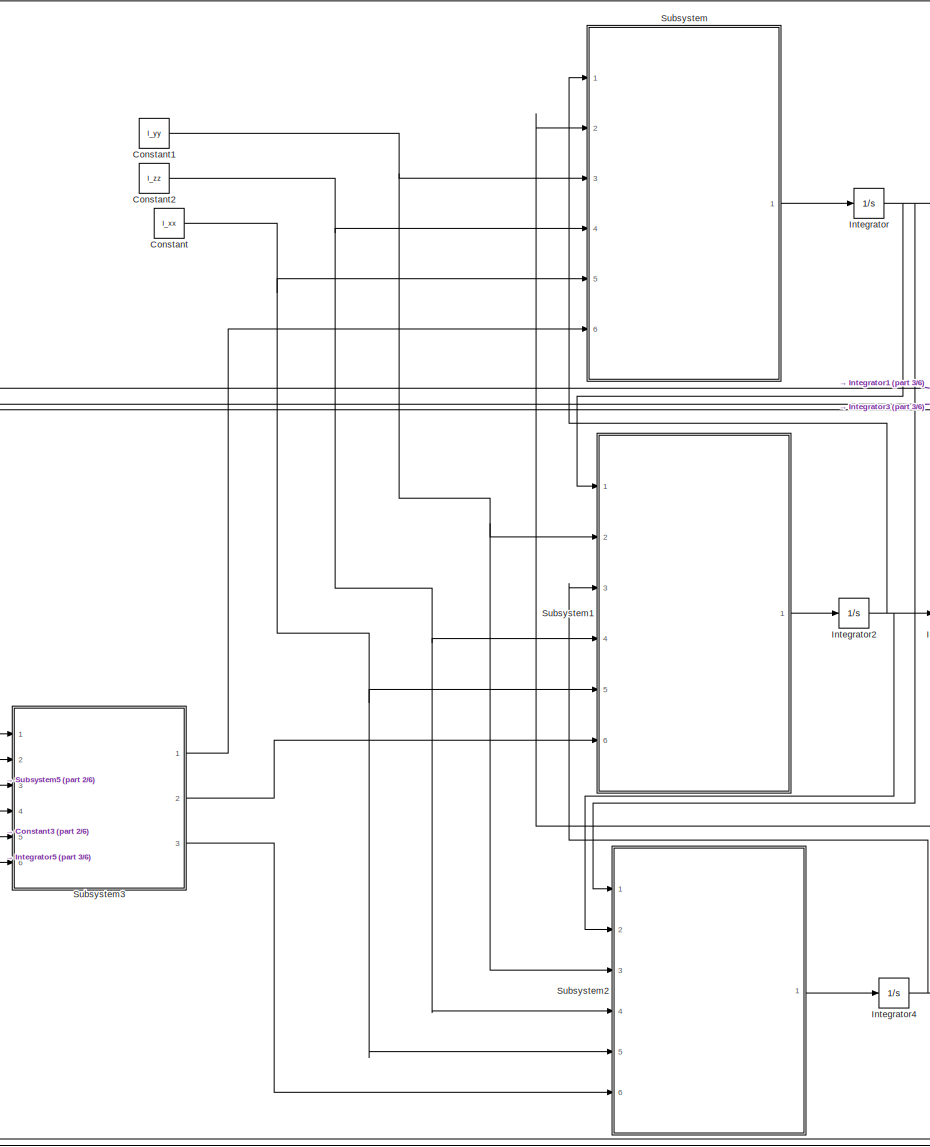
[diagram: root canvas - part 1/6, top center region]
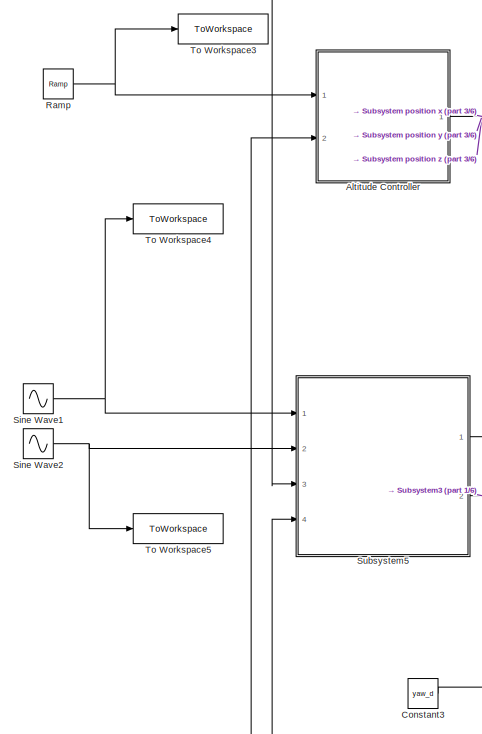
[diagram: root canvas - part 2/6, top left region]
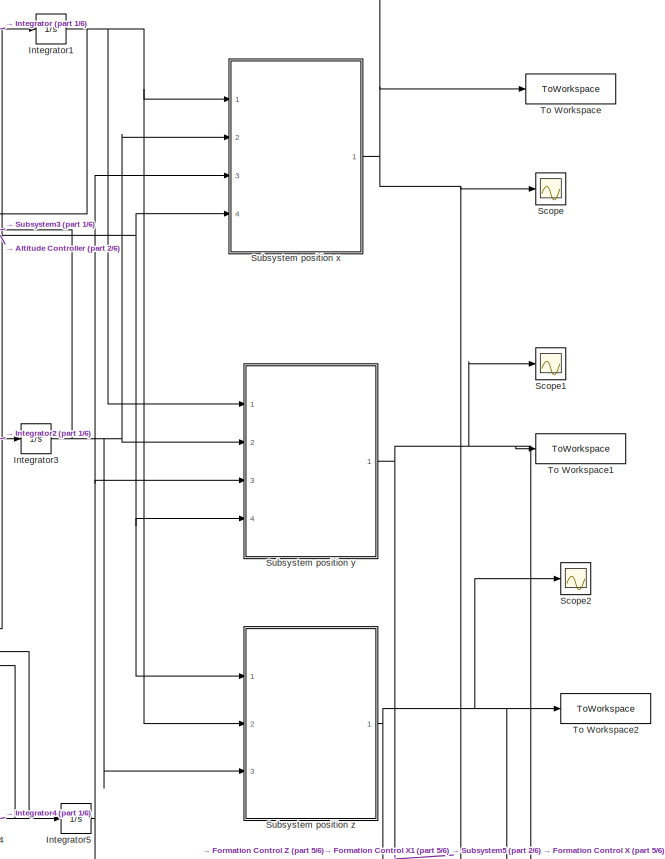
[diagram: root canvas - part 3/6, top right region]
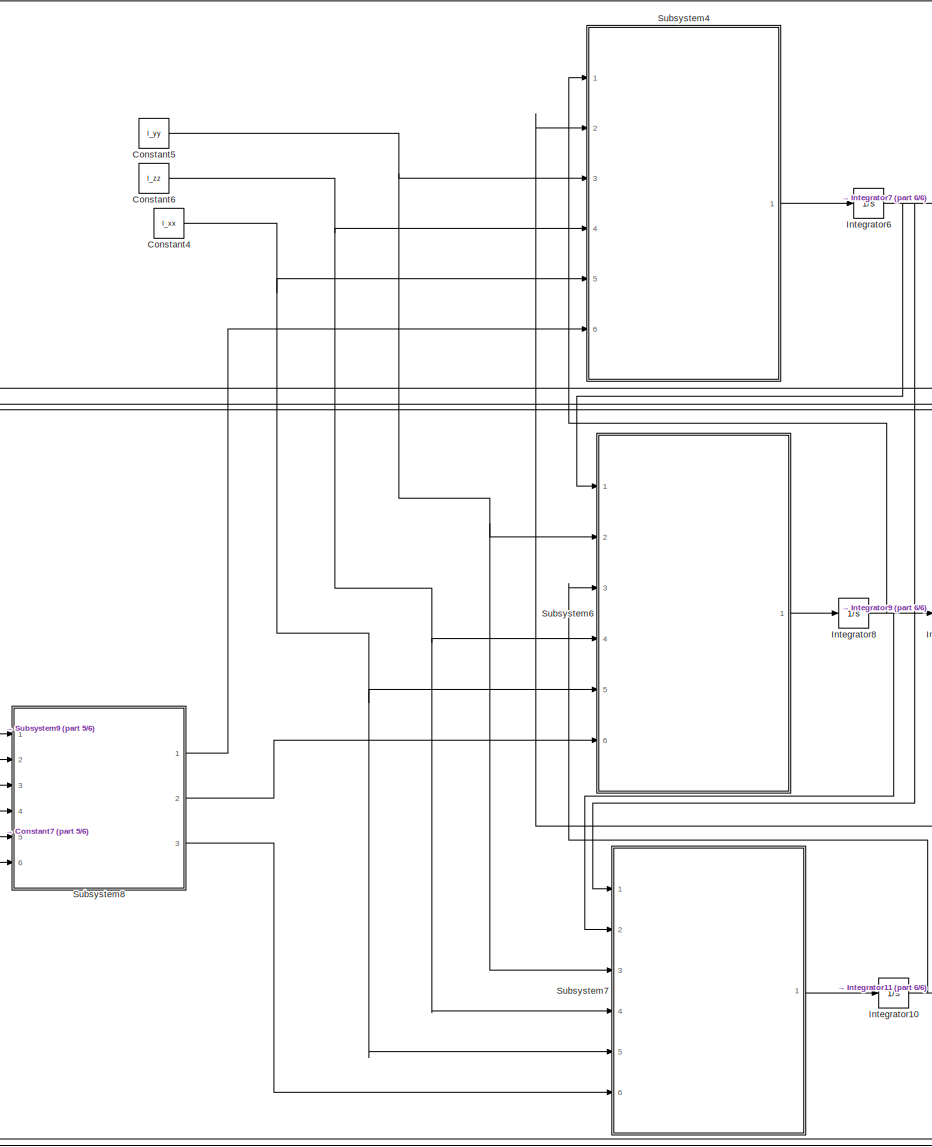
[diagram: root canvas - part 4/6, bottom center region]
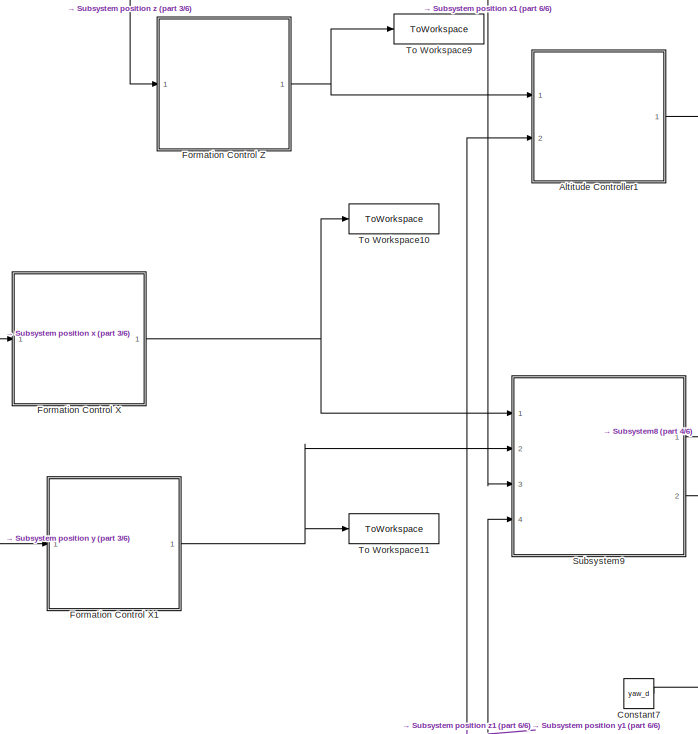
[diagram: root canvas - part 5/6, bottom left region]
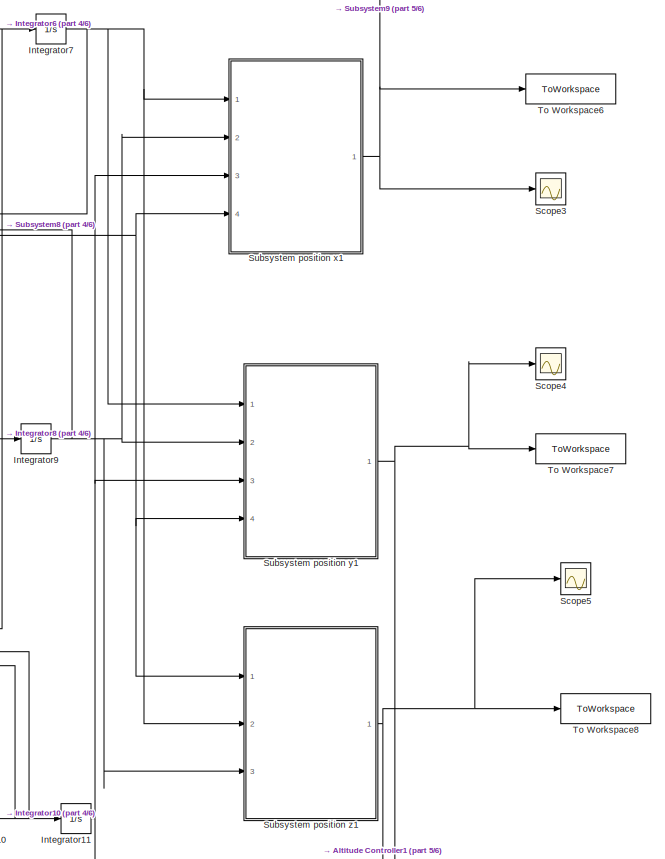
[diagram: root canvas - part 6/6, bottom right region]
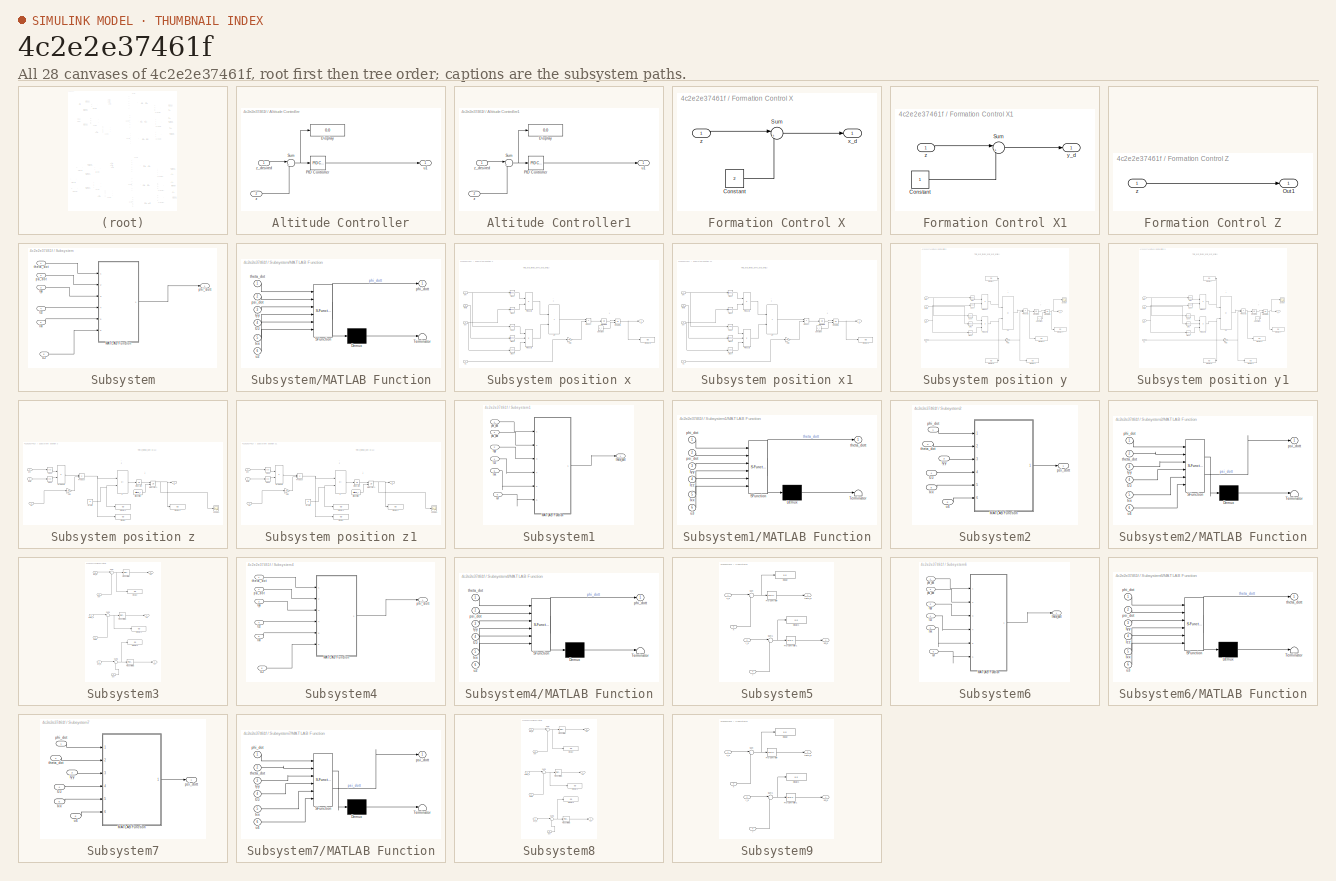
[diagram: thumbnail index - all 28 canvases of the model, root first then tree order]
MODEL slx_4c2e2e37461f
KIND model
CONFIG AbsTol = auto
CONFIG EnableMultiTasking = off
CONFIG FixedStep = 0.01
CONFIG MaxStep = auto
CONFIG MinStep = auto
CONFIG RelTol = 1e-3
CONFIG SampleTimeConstraint = Unconstrained
CONFIG SolverName = FixedStepAuto
CONFIG StartTime = 0.0
CONFIG StopTime = 300
BLOCK [SubSystem] Altitude Controller
  Ports = [2, 1]
  RequestExecContextInheritance = off
BLOCK [Display] Altitude Controller/Display
  Decimation = 1
  Ports = [1]
BLOCK [Reference] Altitude Controller/PID Controller  REF=slpidlib/PID Controller
  Ports = [1, 1]
  SourceBlock = slpidlib/PID Controller
  SourceProductBaseCode = SL
  SourceType = PID 1dof
BLOCK [Sum] Altitude Controller/Sum
  Inputs = |+-
  Ports = [2, 1]
BLOCK [Outport] Altitude Controller/u1
BLOCK [Inport] Altitude Controller/z
  Port = 2
BLOCK [Inport] Altitude Controller/z_desired
BLOCK [SubSystem] Altitude Controller1
  Ports = [2, 1]
  RequestExecContextInheritance = off
BLOCK [Display] Altitude Controller1/Display
  Decimation = 1
  Ports = [1]
BLOCK [Reference] Altitude Controller1/PID Controller  REF=slpidlib/PID Controller
  Ports = [1, 1]
  SourceBlock = slpidlib/PID Controller
  SourceProductBaseCode = SL
  SourceType = PID 1dof
BLOCK [Sum] Altitude Controller1/Sum
  Inputs = |+-
  Ports = [2, 1]
BLOCK [Outport] Altitude Controller1/u1
BLOCK [Inport] Altitude Controller1/z
  Port = 2
BLOCK [Inport] Altitude Controller1/z_desired
BLOCK [Constant] Constant
  Value = I_xx
BLOCK [Constant] Constant1
  Value = I_yy
BLOCK [Constant] Constant2
  Value = I_zz
BLOCK [Constant] Constant3
  Value = yaw_d
BLOCK [Constant] Constant4
  Value = I_xx
BLOCK [Constant] Constant5
  Value = I_yy
BLOCK [Constant] Constant6
  Value = I_zz
BLOCK [Constant] Constant7
  Value = yaw_d
BLOCK [SubSystem] Formation Control X
  Ports = [1, 1]
  RequestExecContextInheritance = off
BLOCK [Constant] Formation Control X/Constant
  Value = 2
BLOCK [Sum] Formation Control X/Sum
  Inputs = |+-
  Ports = [2, 1]
BLOCK [Outport] Formation Control X/x_d
BLOCK [Inport] Formation Control X/z
BLOCK [SubSystem] Formation Control X1
  Ports = [1, 1]
  RequestExecContextInheritance = off
BLOCK [Constant] Formation Control X1/Constant
BLOCK [Sum] Formation Control X1/Sum
  Inputs = |++
  Ports = [2, 1]
BLOCK [Outport] Formation Control X1/y_d
BLOCK [Inport] Formation Control X1/z
BLOCK [SubSystem] Formation Control Z
  Ports = [1, 1]
  RequestExecContextInheritance = off
BLOCK [Outport] Formation Control Z/Out1
BLOCK [Inport] Formation Control Z/z
BLOCK [Integrator] Integrator
  Ports = [1, 1]
BLOCK [Integrator] Integrator1
  Ports = [1, 1]
BLOCK [Integrator] Integrator10
  Ports = [1, 1]
BLOCK [Integrator] Integrator11
  Ports = [1, 1]
BLOCK [Integrator] Integrator2
  Ports = [1, 1]
BLOCK [Integrator] Integrator3
  Ports = [1, 1]
BLOCK [Integrator] Integrator4
  Ports = [1, 1]
BLOCK [Integrator] Integrator5
  Ports = [1, 1]
BLOCK [Integrator] Integrator6
  Ports = [1, 1]
BLOCK [Integrator] Integrator7
  Ports = [1, 1]
BLOCK [Integrator] Integrator8
  Ports = [1, 1]
BLOCK [Integrator] Integrator9
  Ports = [1, 1]
BLOCK [Reference] Ramp  REF=simulink/Sources/Ramp
  Ports = [0, 1]
  SourceBlock = simulink/Sources/Ramp
  SourceProductBaseCode = SL
  SourceType = Ramp
BLOCK [Scope] Scope
  Floating = off
  NumInputPorts = 1
  Ports = [1]
  ScopeSpecificationString = Simulink.scopes.TimeScopeBlockCfg('CurrentConfiguration', extmgr.ConfigurationSet(extmgr.Configuration('Core','General UI',true),extmgr.Configuration('Core','Source UI',true),extmgr.Configuration('Sources','WiredSimulink',true,'DataLoggingVariableName','ScopeData1'),extmgr.Configuration('Visuals','Time Domain',true),extmgr.Configuration('Tools','Plot Navigation',true),extmgr.Configuration('Tools',...<+40ch>
BLOCK [Scope] Scope1
  Floating = off
  NumInputPorts = 1
  Ports = [1]
  ScopeSpecificationString = Simulink.scopes.TimeScopeBlockCfg('CurrentConfiguration', extmgr.ConfigurationSet(extmgr.Configuration('Core','General UI',true),extmgr.Configuration('Core','Source UI',true),extmgr.Configuration('Sources','WiredSimulink',true,'DataLoggingVariableName','ScopeData2'),extmgr.Configuration('Visuals','Time Domain',true),extmgr.Configuration('Tools','Plot Navigation',true),extmgr.Configuration('Tools',...<+40ch>
BLOCK [Scope] Scope2
  Floating = off
  NumInputPorts = 1
  Ports = [1]
  ScopeSpecificationString = Simulink.scopes.TimeScopeBlockCfg('CurrentConfiguration', extmgr.ConfigurationSet(extmgr.Configuration('Core','General UI',true),extmgr.Configuration('Core','Source UI',true),extmgr.Configuration('Sources','WiredSimulink',true,'DataLoggingVariableName','ScopeData3'),extmgr.Configuration('Visuals','Time Domain',true),extmgr.Configuration('Tools','Plot Navigation',true),extmgr.Configuration('Tools',...<+40ch>
BLOCK [Scope] Scope3
  Floating = off
  NumInputPorts = 1
  Ports = [1]
  ScopeSpecificationString = Simulink.scopes.TimeScopeBlockCfg('CurrentConfiguration', extmgr.ConfigurationSet(extmgr.Configuration('Core','General UI',true),extmgr.Configuration('Core','Source UI',true),extmgr.Configuration('Sources','WiredSimulink',true,'DataLoggingVariableName','ScopeData1'),extmgr.Configuration('Visuals','Time Domain',true),extmgr.Configuration('Tools','Plot Navigation',true),extmgr.Configuration('Tools',...<+40ch>
BLOCK [Scope] Scope4
  Floating = off
  NumInputPorts = 1
  Ports = [1]
  ScopeSpecificationString = Simulink.scopes.TimeScopeBlockCfg('CurrentConfiguration', extmgr.ConfigurationSet(extmgr.Configuration('Core','General UI',true),extmgr.Configuration('Core','Source UI',true),extmgr.Configuration('Sources','WiredSimulink',true,'DataLoggingVariableName','ScopeData2'),extmgr.Configuration('Visuals','Time Domain',true),extmgr.Configuration('Tools','Plot Navigation',true),extmgr.Configuration('Tools',...<+40ch>
BLOCK [Scope] Scope5
  Floating = off
  NumInputPorts = 1
  Ports = [1]
  ScopeSpecificationString = Simulink.scopes.TimeScopeBlockCfg('CurrentConfiguration', extmgr.ConfigurationSet(extmgr.Configuration('Core','General UI',true),extmgr.Configuration('Core','Source UI',true),extmgr.Configuration('Sources','WiredSimulink',true,'DataLoggingVariableName','ScopeData3'),extmgr.Configuration('Visuals','Time Domain',true),extmgr.Configuration('Tools','Plot Navigation',true),extmgr.Configuration('Tools',...<+40ch>
BLOCK [Sin] Sine Wave1
  Frequency = 0.5
  Ports = [0, 1]
  SampleTime = 0
BLOCK [Sin] Sine Wave2
  Frequency = 0.5
  Ports = [0, 1]
  SampleTime = 0
BLOCK [SubSystem] Subsystem
  Ports = [6, 1]
  RequestExecContextInheritance = off
BLOCK [SubSystem] Subsystem position x
  Ports = [4, 1]
  RequestExecContextInheritance = off
BLOCK [Constant] Subsystem position x/Constant
  Value = x_i
BLOCK [Trigonometry] Subsystem position x/Cos1
  Operator = cos
  Ports = [1, 1]
BLOCK [Display] Subsystem position x/Display6
  Decimation = 1
  Ports = [1]
BLOCK [Integrator] Subsystem position x/Integrator4
  Ports = [1, 1]
BLOCK [Integrator] Subsystem position x/Integrator5
  InitialConditionSource = external
  Ports = [2, 1]
BLOCK [Product] Subsystem position x/Product
  Ports = [2, 1]
BLOCK [Product] Subsystem position x/Product2
  Ports = [2, 1]
BLOCK [Product] Subsystem position x/Product3
  Inputs = 3
  Ports = [3, 1]
BLOCK [Trigonometry] Subsystem position x/Sin1 1
  Ports = [1, 1]
BLOCK [Trigonometry] Subsystem position x/Sin1 2
  Ports = [1, 1]
BLOCK [Trigonometry] Subsystem position x/Sin1 3
  Ports = [1, 1]
BLOCK [Trigonometry] Subsystem position x/Sin1 4
  Operator = cos
  Ports = [1, 1]
BLOCK [Gain] Subsystem position x/T//m 2
  Gain = 1/m
BLOCK [Sum] Subsystem position x/Z''2
  IconShape = rectangular
  Ports = [2, 1]
BLOCK [Inport] Subsystem position x/phi 
BLOCK [Inport] Subsystem position x/psi 
  Port = 3
BLOCK [Inport] Subsystem position x/theta 
  Port = 2
BLOCK [Inport] Subsystem position x/u1
  Port = 4
BLOCK [Outport] Subsystem position x/x
BLOCK [SubSystem] Subsystem position x1
  Ports = [4, 1]
  RequestExecContextInheritance = off
BLOCK [Constant] Subsystem position x1/Constant
  Value = x_i
BLOCK [Trigonometry] Subsystem position x1/Cos1
  Operator = cos
  Ports = [1, 1]
BLOCK [Display] Subsystem position x1/Display6
  Decimation = 1
  Ports = [1]
BLOCK [Integrator] Subsystem position x1/Integrator4
  Ports = [1, 1]
BLOCK [Integrator] Subsystem position x1/Integrator5
  InitialConditionSource = external
  Ports = [2, 1]
BLOCK [Product] Subsystem position x1/Product
  Ports = [2, 1]
BLOCK [Product] Subsystem position x1/Product2
  Ports = [2, 1]
BLOCK [Product] Subsystem position x1/Product3
  Inputs = 3
  Ports = [3, 1]
BLOCK [Trigonometry] Subsystem position x1/Sin1 1
  Ports = [1, 1]
BLOCK [Trigonometry] Subsystem position x1/Sin1 2
  Ports = [1, 1]
BLOCK [Trigonometry] Subsystem position x1/Sin1 3
  Ports = [1, 1]
BLOCK [Trigonometry] Subsystem position x1/Sin1 4
  Operator = cos
  Ports = [1, 1]
BLOCK [Gain] Subsystem position x1/T//m 2
  Gain = 1/m
BLOCK [Sum] Subsystem position x1/Z''2
  IconShape = rectangular
  Ports = [2, 1]
BLOCK [Inport] Subsystem position x1/phi 
BLOCK [Inport] Subsystem position x1/psi 
  Port = 3
BLOCK [Inport] Subsystem position x1/theta 
  Port = 2
BLOCK [Inport] Subsystem position x1/u1
  Port = 4
BLOCK [Outport] Subsystem position x1/x
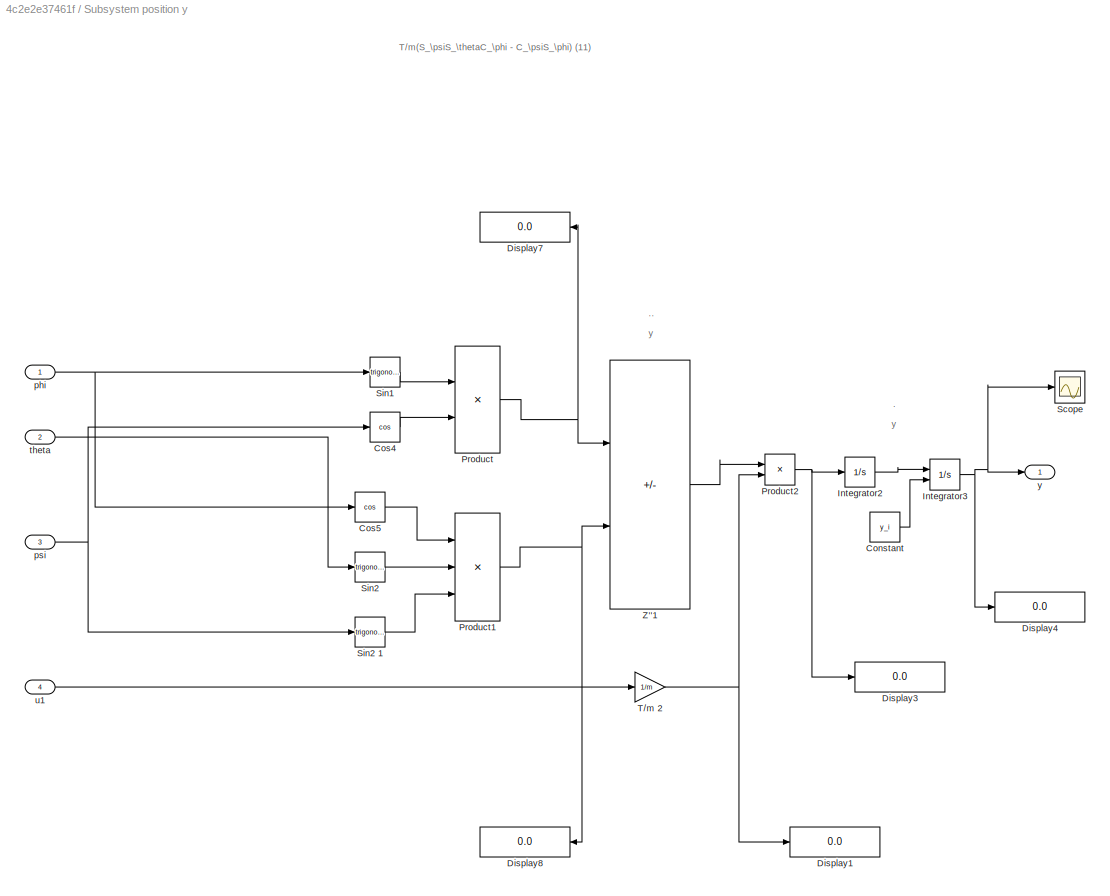
BLOCK [SubSystem] Subsystem position y
  Ports = [4, 1]
  RequestExecContextInheritance = off
BLOCK [Constant] Subsystem position y/Constant
  Value = y_i
BLOCK [Trigonometry] Subsystem position y/Cos4
  Operator = cos
  Ports = [1, 1]
BLOCK [Trigonometry] Subsystem position y/Cos5
  Operator = cos
  Ports = [1, 1]
BLOCK [Display] Subsystem position y/Display1
  Decimation = 1
  Ports = [1]
BLOCK [Display] Subsystem position y/Display3
  Decimation = 1
  Ports = [1]
BLOCK [Display] Subsystem position y/Display4
  Decimation = 1
  Ports = [1]
BLOCK [Display] Subsystem position y/Display7
  Decimation = 1
  NameLocation = top
  Ports = [1]
BLOCK [Display] Subsystem position y/Display8
  Decimation = 1
  NameLocation = top
  Ports = [1]
BLOCK [Integrator] Subsystem position y/Integrator2
  Ports = [1, 1]
BLOCK [Integrator] Subsystem position y/Integrator3
  InitialConditionSource = external
  Ports = [2, 1]
BLOCK [Product] Subsystem position y/Product
  Ports = [2, 1]
BLOCK [Product] Subsystem position y/Product1
  Inputs = 3
  Ports = [3, 1]
BLOCK [Product] Subsystem position y/Product2
  Ports = [2, 1]
BLOCK [Scope] Subsystem position y/Scope
  Floating = off
  NumInputPorts = 1
  Ports = [1]
  ScopeSpecificationString = Simulink.scopes.TimeScopeBlockCfg('CurrentConfiguration', extmgr.ConfigurationSet(extmgr.Configuration('Core','General UI',true),extmgr.Configuration('Core','Source UI',true),extmgr.Configuration('Sources','WiredSimulink',true),extmgr.Configuration('Visuals','Time Domain',true,'SerializedDisplays',{struct('MinYLimReal','-1179.08654','MaxYLimReal','131.00962','YLabelReal','','MinYLimMag','  0.00000...<+1453ch>
BLOCK [Trigonometry] Subsystem position y/Sin1 
  Ports = [1, 1]
BLOCK [Trigonometry] Subsystem position y/Sin2 
  Ports = [1, 1]
BLOCK [Trigonometry] Subsystem position y/Sin2 1
  Ports = [1, 1]
BLOCK [Gain] Subsystem position y/T//m 2
  Gain = 1/m
BLOCK [Sum] Subsystem position y/Z''1
  IconShape = rectangular
  Inputs = -+
  Ports = [2, 1]
BLOCK [Inport] Subsystem position y/phi 
BLOCK [Inport] Subsystem position y/psi 
  Port = 3
BLOCK [Inport] Subsystem position y/theta 
  Port = 2
BLOCK [Inport] Subsystem position y/u1 
  Port = 4
BLOCK [Outport] Subsystem position y/y 
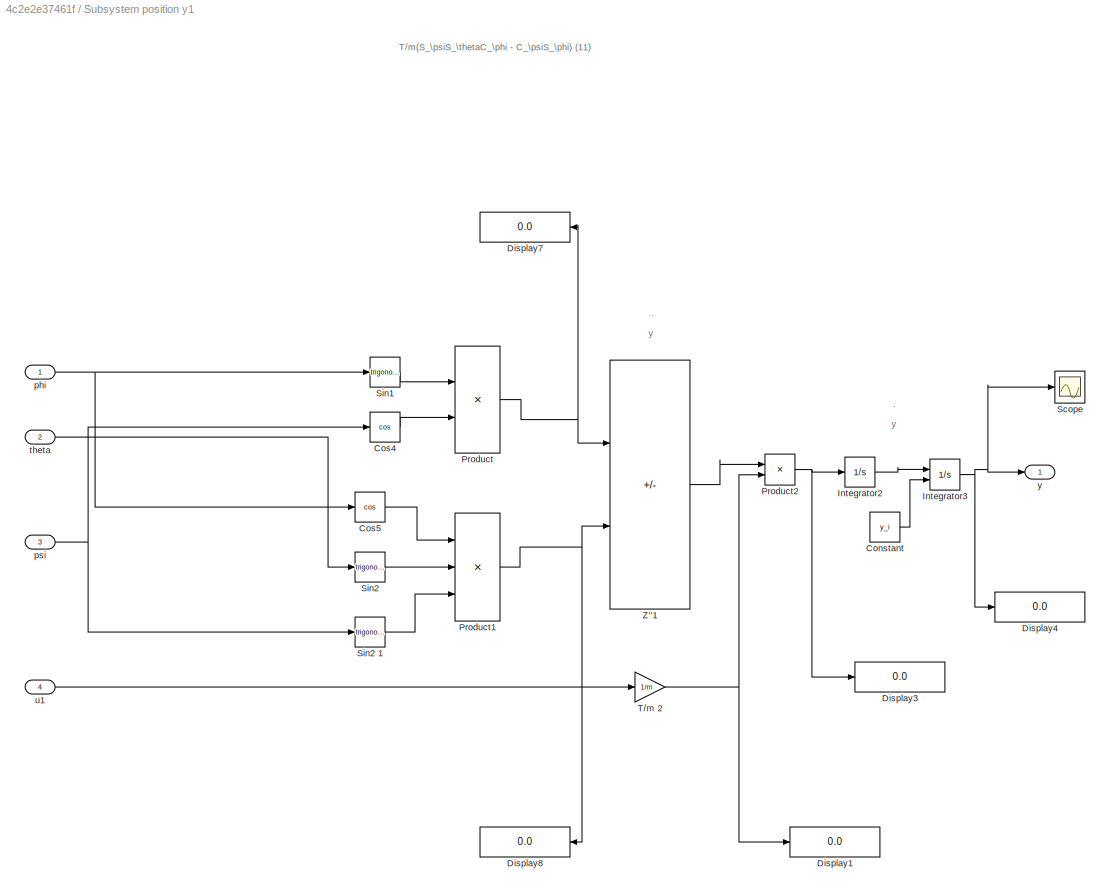
BLOCK [SubSystem] Subsystem position y1
  Ports = [4, 1]
  RequestExecContextInheritance = off
BLOCK [Constant] Subsystem position y1/Constant
  Value = y_i
BLOCK [Trigonometry] Subsystem position y1/Cos4
  Operator = cos
  Ports = [1, 1]
BLOCK [Trigonometry] Subsystem position y1/Cos5
  Operator = cos
  Ports = [1, 1]
BLOCK [Display] Subsystem position y1/Display1
  Decimation = 1
  Ports = [1]
BLOCK [Display] Subsystem position y1/Display3
  Decimation = 1
  Ports = [1]
BLOCK [Display] Subsystem position y1/Display4
  Decimation = 1
  Ports = [1]
BLOCK [Display] Subsystem position y1/Display7
  Decimation = 1
  NameLocation = top
  Ports = [1]
BLOCK [Display] Subsystem position y1/Display8
  Decimation = 1
  NameLocation = top
  Ports = [1]
BLOCK [Integrator] Subsystem position y1/Integrator2
  Ports = [1, 1]
BLOCK [Integrator] Subsystem position y1/Integrator3
  InitialConditionSource = external
  Ports = [2, 1]
BLOCK [Product] Subsystem position y1/Product
  Ports = [2, 1]
BLOCK [Product] Subsystem position y1/Product1
  Inputs = 3
  Ports = [3, 1]
BLOCK [Product] Subsystem position y1/Product2
  Ports = [2, 1]
BLOCK [Scope] Subsystem position y1/Scope
  Floating = off
  NumInputPorts = 1
  Ports = [1]
  ScopeSpecificationString = Simulink.scopes.TimeScopeBlockCfg('CurrentConfiguration', extmgr.ConfigurationSet(extmgr.Configuration('Core','General UI',true),extmgr.Configuration('Core','Source UI',true),extmgr.Configuration('Sources','WiredSimulink',true),extmgr.Configuration('Visuals','Time Domain',true,'SerializedDisplays',{struct('MinYLimReal','-1179.08654','MaxYLimReal','131.00962','YLabelReal','','MinYLimMag','  0.00000...<+1453ch>
BLOCK [Trigonometry] Subsystem position y1/Sin1 
  Ports = [1, 1]
BLOCK [Trigonometry] Subsystem position y1/Sin2 
  Ports = [1, 1]
BLOCK [Trigonometry] Subsystem position y1/Sin2 1
  Ports = [1, 1]
BLOCK [Gain] Subsystem position y1/T//m 2
  Gain = 1/m
BLOCK [Sum] Subsystem position y1/Z''1
  IconShape = rectangular
  Inputs = -+
  Ports = [2, 1]
BLOCK [Inport] Subsystem position y1/phi 
BLOCK [Inport] Subsystem position y1/psi 
  Port = 3
BLOCK [Inport] Subsystem position y1/theta 
  Port = 2
BLOCK [Inport] Subsystem position y1/u1 
  Port = 4
BLOCK [Outport] Subsystem position y1/y 
BLOCK [SubSystem] Subsystem position z
  Ports = [3, 1]
  RequestExecContextInheritance = off
BLOCK [Constant] Subsystem position z/Altitude Initial
  Value = altitude_i
BLOCK [Trigonometry] Subsystem position z/Cos2
  Operator = cos
  Ports = [1, 1]
BLOCK [Trigonometry] Subsystem position z/Cos3
  Operator = cos
  Ports = [1, 1]
BLOCK [Display] Subsystem position z/Display
  Decimation = 1
  Ports = [1]
BLOCK [Display] Subsystem position z/Display1
  Decimation = 1
  Ports = [1]
BLOCK [Display] Subsystem position z/Display2
  Decimation = 1
  Ports = [1]
BLOCK [Constant] Subsystem position z/Gravity
  Value = g
BLOCK [Integrator] Subsystem position z/Integrator
  Ports = [1, 1]
BLOCK [Integrator] Subsystem position z/Integrator1
  InitialConditionSource = external
  Ports = [2, 1]
BLOCK [Product] Subsystem position z/Product
  Ports = [2, 1]
BLOCK [Product] Subsystem position z/Product4
  Ports = [2, 1]
BLOCK [Scope] Subsystem position z/Scope1
  Floating = off
  NumInputPorts = 1
  Ports = [1]
  ScopeSpecificationString = Simulink.scopes.TimeScopeBlockCfg('CurrentConfiguration', extmgr.ConfigurationSet(extmgr.Configuration('Core','General UI',true),extmgr.Configuration('Core','Source UI',true),extmgr.Configuration('Sources','WiredSimulink',true,'DataLoggingVariableName','ScopeData1'),extmgr.Configuration('Visuals','Time Domain',true,'SerializedDisplays',{struct('MinYLimReal','-1.00000','MaxYLimReal','1.00000','YLab...<+1443ch>
BLOCK [Gain] Subsystem position z/T//m 2
  Gain = 1/m
BLOCK [Sum] Subsystem position z/Z''
  IconShape = rectangular
  Inputs = +-
  Ports = [2, 1]
BLOCK [Inport] Subsystem position z/phi 
  Port = 2
BLOCK [Inport] Subsystem position z/theta 
  Port = 3
BLOCK [Inport] Subsystem position z/u1
BLOCK [Outport] Subsystem position z/z
BLOCK [SubSystem] Subsystem position z1
  Ports = [3, 1]
  RequestExecContextInheritance = off
BLOCK [Constant] Subsystem position z1/Altitude Initial
  Value = altitude_i
BLOCK [Trigonometry] Subsystem position z1/Cos2
  Operator = cos
  Ports = [1, 1]
BLOCK [Trigonometry] Subsystem position z1/Cos3
  Operator = cos
  Ports = [1, 1]
BLOCK [Display] Subsystem position z1/Display
  Decimation = 1
  Ports = [1]
BLOCK [Display] Subsystem position z1/Display1
  Decimation = 1
  Ports = [1]
BLOCK [Display] Subsystem position z1/Display2
  Decimation = 1
  Ports = [1]
BLOCK [Constant] Subsystem position z1/Gravity
  Value = g
BLOCK [Integrator] Subsystem position z1/Integrator
  Ports = [1, 1]
BLOCK [Integrator] Subsystem position z1/Integrator1
  InitialConditionSource = external
  Ports = [2, 1]
BLOCK [Product] Subsystem position z1/Product
  Ports = [2, 1]
BLOCK [Product] Subsystem position z1/Product4
  Ports = [2, 1]
BLOCK [Scope] Subsystem position z1/Scope1
  Floating = off
  NumInputPorts = 1
  Ports = [1]
  ScopeSpecificationString = Simulink.scopes.TimeScopeBlockCfg('CurrentConfiguration', extmgr.ConfigurationSet(extmgr.Configuration('Core','General UI',true),extmgr.Configuration('Core','Source UI',true),extmgr.Configuration('Sources','WiredSimulink',true,'DataLoggingVariableName','ScopeData1'),extmgr.Configuration('Visuals','Time Domain',true,'SerializedDisplays',{struct('MinYLimReal','-1.00000','MaxYLimReal','1.00000','YLab...<+1443ch>
BLOCK [Gain] Subsystem position z1/T//m 2
  Gain = 1/m
BLOCK [Sum] Subsystem position z1/Z''
  IconShape = rectangular
  Inputs = +-
  Ports = [2, 1]
BLOCK [Inport] Subsystem position z1/phi 
  Port = 2
BLOCK [Inport] Subsystem position z1/theta 
  Port = 3
BLOCK [Inport] Subsystem position z1/u1
BLOCK [Outport] Subsystem position z1/z
BLOCK [Inport] Subsystem/Ixx
  Port = 5
BLOCK [Inport] Subsystem/Iyy
  Port = 3
BLOCK [Inport] Subsystem/Izz
  Port = 4
BLOCK [SubSystem] Subsystem/MATLAB Function
  ErrorFcn = Stateflow.Translate.translate
  PermitHierarchicalResolution = ExplicitOnly
  Ports = [6, 1]
  RequestExecContextInheritance = off
  SFBlockType = MATLAB Function
  TreatAsAtomicUnit = on
BLOCK [Demux] Subsystem/MATLAB Function/ Demux 
  Outputs = 1
  Ports = [1, 1]
BLOCK [S-Function] Subsystem/MATLAB Function/ SFunction 
  EnableBusSupport = on
  FunctionName = sf_sfun
  PortCounts = [6 2]
  Ports = [6, 2]
  SFcnIsStateOwnerBlock = off
  SFunctionDeploymentMode = off
  Tag = Stateflow S-Function 8
BLOCK [Terminator] Subsystem/MATLAB Function/ Terminator 
BLOCK [Inport] Subsystem/MATLAB Function/Ixx
  Port = 5
BLOCK [Inport] Subsystem/MATLAB Function/Iyy
  Port = 3
BLOCK [Inport] Subsystem/MATLAB Function/Izz
  Port = 4
BLOCK [Outport] Subsystem/MATLAB Function/phi_dott
BLOCK [Inport] Subsystem/MATLAB Function/psi_dot
  Port = 2
BLOCK [Inport] Subsystem/MATLAB Function/theta_dot
BLOCK [Inport] Subsystem/MATLAB Function/u2
  Port = 6
BLOCK [Outport] Subsystem/phi_dott
BLOCK [Inport] Subsystem/psi_dot
  Port = 2
BLOCK [Inport] Subsystem/theta_dot
BLOCK [Inport] Subsystem/u2
  Port = 6
BLOCK [SubSystem] Subsystem1
  Ports = [6, 1]
  RequestExecContextInheritance = off
BLOCK [Inport] Subsystem1/Ixx
  Port = 5
BLOCK [Inport] Subsystem1/Iyy
  Port = 2
BLOCK [Inport] Subsystem1/Izz
  Port = 4
BLOCK [SubSystem] Subsystem1/MATLAB Function
  ErrorFcn = Stateflow.Translate.translate
  PermitHierarchicalResolution = ExplicitOnly
  Ports = [6, 1]
  RequestExecContextInheritance = off
  SFBlockType = MATLAB Function
  TreatAsAtomicUnit = on
BLOCK [Demux] Subsystem1/MATLAB Function/ Demux 
  Outputs = 1
  Ports = [1, 1]
BLOCK [S-Function] Subsystem1/MATLAB Function/ SFunction 
  EnableBusSupport = on
  FunctionName = sf_sfun
  PortCounts = [6 2]
  Ports = [6, 2]
  SFcnIsStateOwnerBlock = off
  SFunctionDeploymentMode = off
  Tag = Stateflow S-Function 9
BLOCK [Terminator] Subsystem1/MATLAB Function/ Terminator 
BLOCK [Inport] Subsystem1/MATLAB Function/Ixx
  Port = 5
BLOCK [Inport] Subsystem1/MATLAB Function/Iyy
  Port = 3
BLOCK [Inport] Subsystem1/MATLAB Function/Izz
  Port = 4
BLOCK [Inport] Subsystem1/MATLAB Function/phi_dot
BLOCK [Inport] Subsystem1/MATLAB Function/psi_dot
  Port = 2
BLOCK [Outport] Subsystem1/MATLAB Function/theta_dott
BLOCK [Inport] Subsystem1/MATLAB Function/u3
  Port = 6
BLOCK [Inport] Subsystem1/phi_dot
BLOCK [Inport] Subsystem1/psi_dot
  Port = 3
BLOCK [Outport] Subsystem1/theta_dott
BLOCK [Inport] Subsystem1/u3
  Port = 6
BLOCK [SubSystem] Subsystem2
  Ports = [6, 1]
  RequestExecContextInheritance = off
BLOCK [Inport] Subsystem2/Ixx
  Port = 5
BLOCK [Inport] Subsystem2/Iyy
  Port = 3
BLOCK [Inport] Subsystem2/Izz
  Port = 4
BLOCK [SubSystem] Subsystem2/MATLAB Function
  ErrorFcn = Stateflow.Translate.translate
  PermitHierarchicalResolution = ExplicitOnly
  Ports = [6, 1]
  RequestExecContextInheritance = off
  SFBlockType = MATLAB Function
  TreatAsAtomicUnit = on
BLOCK [Demux] Subsystem2/MATLAB Function/ Demux 
  Outputs = 1
  Ports = [1, 1]
BLOCK [S-Function] Subsystem2/MATLAB Function/ SFunction 
  EnableBusSupport = on
  FunctionName = sf_sfun
  PortCounts = [6 2]
  Ports = [6, 2]
  SFcnIsStateOwnerBlock = off
  SFunctionDeploymentMode = off
  Tag = Stateflow S-Function 10
BLOCK [Terminator] Subsystem2/MATLAB Function/ Terminator 
BLOCK [Inport] Subsystem2/MATLAB Function/Ixx
  Port = 5
BLOCK [Inport] Subsystem2/MATLAB Function/Iyy
  Port = 3
BLOCK [Inport] Subsystem2/MATLAB Function/Izz
  Port = 4
BLOCK [Inport] Subsystem2/MATLAB Function/phi_dot
BLOCK [Outport] Subsystem2/MATLAB Function/psi_dott
BLOCK [Inport] Subsystem2/MATLAB Function/theta_dot
  Port = 2
BLOCK [Inport] Subsystem2/MATLAB Function/u4
  Port = 6
BLOCK [Inport] Subsystem2/phi_dot
BLOCK [Outport] Subsystem2/psi_dott
BLOCK [Inport] Subsystem2/theta_dot
  Port = 2
BLOCK [Inport] Subsystem2/u4
  Port = 6
BLOCK [SubSystem] Subsystem3
  Ports = [6, 3]
  RequestExecContextInheritance = off
BLOCK [Display] Subsystem3/Display
  Decimation = 1
  Ports = [1]
BLOCK [Display] Subsystem3/Display1
  Decimation = 1
  Ports = [1]
BLOCK [Display] Subsystem3/Display2
  Decimation = 1
  Ports = [1]
BLOCK [Reference] Subsystem3/PID Controller  REF=slpidlib/PID Controller
  Ports = [1, 1]
  SourceBlock = slpidlib/PID Controller
  SourceProductBaseCode = SL
  SourceType = PID 1dof
BLOCK [Reference] Subsystem3/PID Controller1  REF=slpidlib/PID Controller
  Ports = [1, 1]
  SourceBlock = slpidlib/PID Controller
  SourceProductBaseCode = SL
  SourceType = PID 1dof
BLOCK [Reference] Subsystem3/PID Controller2  REF=slpidlib/PID Controller
  Ports = [1, 1]
  SourceBlock = slpidlib/PID Controller
  SourceProductBaseCode = SL
  SourceType = PID 1dof
BLOCK [Sum] Subsystem3/Sum
  Inputs = |+-
  Ports = [2, 1]
BLOCK [Sum] Subsystem3/Sum1
  Inputs = |+-
  Ports = [2, 1]
BLOCK [Sum] Subsystem3/Sum2
  Inputs = |+-
  Ports = [2, 1]
BLOCK [Inport] Subsystem3/phi
  Port = 2
BLOCK [Inport] Subsystem3/phi_d
BLOCK [Inport] Subsystem3/psi
  Port = 6
BLOCK [Inport] Subsystem3/psi_d
  Port = 5
BLOCK [Inport] Subsystem3/theta
  Port = 4
BLOCK [Inport] Subsystem3/theta_d
  Port = 3
BLOCK [Outport] Subsystem3/u2
BLOCK [Outport] Subsystem3/u3
  Port = 2
BLOCK [Outport] Subsystem3/u4
  Port = 3
BLOCK [SubSystem] Subsystem4
  Ports = [6, 1]
  RequestExecContextInheritance = off
BLOCK [Inport] Subsystem4/Ixx
  Port = 5
BLOCK [Inport] Subsystem4/Iyy
  Port = 3
BLOCK [Inport] Subsystem4/Izz
  Port = 4
BLOCK [SubSystem] Subsystem4/MATLAB Function
  ErrorFcn = Stateflow.Translate.translate
  PermitHierarchicalResolution = ExplicitOnly
  Ports = [6, 1]
  RequestExecContextInheritance = off
  SFBlockType = MATLAB Function
  TreatAsAtomicUnit = on
BLOCK [Demux] Subsystem4/MATLAB Function/ Demux 
  Outputs = 1
  Ports = [1, 1]
BLOCK [S-Function] Subsystem4/MATLAB Function/ SFunction 
  EnableBusSupport = on
  FunctionName = sf_sfun
  PortCounts = [6 2]
  Ports = [6, 2]
  SFcnIsStateOwnerBlock = off
  SFunctionDeploymentMode = off
  Tag = Stateflow S-Function 1
BLOCK [Terminator] Subsystem4/MATLAB Function/ Terminator 
BLOCK [Inport] Subsystem4/MATLAB Function/Ixx
  Port = 5
BLOCK [Inport] Subsystem4/MATLAB Function/Iyy
  Port = 3
BLOCK [Inport] Subsystem4/MATLAB Function/Izz
  Port = 4
BLOCK [Outport] Subsystem4/MATLAB Function/phi_dott
BLOCK [Inport] Subsystem4/MATLAB Function/psi_dot
  Port = 2
BLOCK [Inport] Subsystem4/MATLAB Function/theta_dot
BLOCK [Inport] Subsystem4/MATLAB Function/u2
  Port = 6
BLOCK [Outport] Subsystem4/phi_dott
BLOCK [Inport] Subsystem4/psi_dot
  Port = 2
BLOCK [Inport] Subsystem4/theta_dot
BLOCK [Inport] Subsystem4/u2
  Port = 6
BLOCK [SubSystem] Subsystem5
  Ports = [4, 2]
  RequestExecContextInheritance = off
BLOCK [Display] Subsystem5/Display
  Decimation = 1
  Ports = [1]
BLOCK [Display] Subsystem5/Display1
  Decimation = 1
  Ports = [1]
BLOCK [Reference] Subsystem5/PID Controller  REF=slpidlib/PID Controller
  Ports = [1, 1]
  SourceBlock = slpidlib/PID Controller
  SourceProductBaseCode = SL
  SourceType = PID 1dof
BLOCK [Reference] Subsystem5/PID Controller1  REF=slpidlib/PID Controller
  Ports = [1, 1]
  SourceBlock = slpidlib/PID Controller
  SourceProductBaseCode = SL
  SourceType = PID 1dof
BLOCK [Sum] Subsystem5/Sum
  Inputs = |+-
  Ports = [2, 1]
BLOCK [Sum] Subsystem5/Sum1
  Inputs = |+-
  Ports = [2, 1]
BLOCK [Outport] Subsystem5/phi_d
BLOCK [Outport] Subsystem5/theta_d
  Port = 2
BLOCK [Inport] Subsystem5/x
  Port = 3
BLOCK [Inport] Subsystem5/x_d
BLOCK [Inport] Subsystem5/y
  Port = 4
BLOCK [Inport] Subsystem5/y_d
  Port = 2
BLOCK [SubSystem] Subsystem6
  Ports = [6, 1]
  RequestExecContextInheritance = off
BLOCK [Inport] Subsystem6/Ixx
  Port = 5
BLOCK [Inport] Subsystem6/Iyy
  Port = 2
BLOCK [Inport] Subsystem6/Izz
  Port = 4
BLOCK [SubSystem] Subsystem6/MATLAB Function
  ErrorFcn = Stateflow.Translate.translate
  PermitHierarchicalResolution = ExplicitOnly
  Ports = [6, 1]
  RequestExecContextInheritance = off
  SFBlockType = MATLAB Function
  TreatAsAtomicUnit = on
BLOCK [Demux] Subsystem6/MATLAB Function/ Demux 
  Outputs = 1
  Ports = [1, 1]
BLOCK [S-Function] Subsystem6/MATLAB Function/ SFunction 
  EnableBusSupport = on
  FunctionName = sf_sfun
  PortCounts = [6 2]
  Ports = [6, 2]
  SFcnIsStateOwnerBlock = off
  SFunctionDeploymentMode = off
  Tag = Stateflow S-Function 2
BLOCK [Terminator] Subsystem6/MATLAB Function/ Terminator 
BLOCK [Inport] Subsystem6/MATLAB Function/Ixx
  Port = 5
BLOCK [Inport] Subsystem6/MATLAB Function/Iyy
  Port = 3
BLOCK [Inport] Subsystem6/MATLAB Function/Izz
  Port = 4
BLOCK [Inport] Subsystem6/MATLAB Function/phi_dot
BLOCK [Inport] Subsystem6/MATLAB Function/psi_dot
  Port = 2
BLOCK [Outport] Subsystem6/MATLAB Function/theta_dott
BLOCK [Inport] Subsystem6/MATLAB Function/u3
  Port = 6
BLOCK [Inport] Subsystem6/phi_dot
BLOCK [Inport] Subsystem6/psi_dot
  Port = 3
BLOCK [Outport] Subsystem6/theta_dott
BLOCK [Inport] Subsystem6/u3
  Port = 6
BLOCK [SubSystem] Subsystem7
  Ports = [6, 1]
  RequestExecContextInheritance = off
BLOCK [Inport] Subsystem7/Ixx
  Port = 5
BLOCK [Inport] Subsystem7/Iyy
  Port = 3
BLOCK [Inport] Subsystem7/Izz
  Port = 4
BLOCK [SubSystem] Subsystem7/MATLAB Function
  ErrorFcn = Stateflow.Translate.translate
  PermitHierarchicalResolution = ExplicitOnly
  Ports = [6, 1]
  RequestExecContextInheritance = off
  SFBlockType = MATLAB Function
  TreatAsAtomicUnit = on
BLOCK [Demux] Subsystem7/MATLAB Function/ Demux 
  Outputs = 1
  Ports = [1, 1]
BLOCK [S-Function] Subsystem7/MATLAB Function/ SFunction 
  EnableBusSupport = on
  FunctionName = sf_sfun
  PortCounts = [6 2]
  Ports = [6, 2]
  SFcnIsStateOwnerBlock = off
  SFunctionDeploymentMode = off
  Tag = Stateflow S-Function 3
BLOCK [Terminator] Subsystem7/MATLAB Function/ Terminator 
BLOCK [Inport] Subsystem7/MATLAB Function/Ixx
  Port = 5
BLOCK [Inport] Subsystem7/MATLAB Function/Iyy
  Port = 3
BLOCK [Inport] Subsystem7/MATLAB Function/Izz
  Port = 4
BLOCK [Inport] Subsystem7/MATLAB Function/phi_dot
BLOCK [Outport] Subsystem7/MATLAB Function/psi_dott
BLOCK [Inport] Subsystem7/MATLAB Function/theta_dot
  Port = 2
BLOCK [Inport] Subsystem7/MATLAB Function/u4
  Port = 6
BLOCK [Inport] Subsystem7/phi_dot
BLOCK [Outport] Subsystem7/psi_dott
BLOCK [Inport] Subsystem7/theta_dot
  Port = 2
BLOCK [Inport] Subsystem7/u4
  Port = 6
BLOCK [SubSystem] Subsystem8
  Ports = [6, 3]
  RequestExecContextInheritance = off
BLOCK [Display] Subsystem8/Display
  Decimation = 1
  Ports = [1]
BLOCK [Display] Subsystem8/Display1
  Decimation = 1
  Ports = [1]
BLOCK [Display] Subsystem8/Display2
  Decimation = 1
  Ports = [1]
BLOCK [Reference] Subsystem8/PID Controller  REF=slpidlib/PID Controller
  Ports = [1, 1]
  SourceBlock = slpidlib/PID Controller
  SourceProductBaseCode = SL
  SourceType = PID 1dof
BLOCK [Reference] Subsystem8/PID Controller1  REF=slpidlib/PID Controller
  Ports = [1, 1]
  SourceBlock = slpidlib/PID Controller
  SourceProductBaseCode = SL
  SourceType = PID 1dof
BLOCK [Reference] Subsystem8/PID Controller2  REF=slpidlib/PID Controller
  Ports = [1, 1]
  SourceBlock = slpidlib/PID Controller
  SourceProductBaseCode = SL
  SourceType = PID 1dof
BLOCK [Sum] Subsystem8/Sum
  Inputs = |+-
  Ports = [2, 1]
BLOCK [Sum] Subsystem8/Sum1
  Inputs = |+-
  Ports = [2, 1]
BLOCK [Sum] Subsystem8/Sum2
  Inputs = |+-
  Ports = [2, 1]
BLOCK [Inport] Subsystem8/phi
  Port = 2
BLOCK [Inport] Subsystem8/phi_d
BLOCK [Inport] Subsystem8/psi
  Port = 6
BLOCK [Inport] Subsystem8/psi_d
  Port = 5
BLOCK [Inport] Subsystem8/theta
  Port = 4
BLOCK [Inport] Subsystem8/theta_d
  Port = 3
BLOCK [Outport] Subsystem8/u2
BLOCK [Outport] Subsystem8/u3
  Port = 2
BLOCK [Outport] Subsystem8/u4
  Port = 3
BLOCK [SubSystem] Subsystem9
  Ports = [4, 2]
  RequestExecContextInheritance = off
BLOCK [Display] Subsystem9/Display
  Decimation = 1
  Ports = [1]
BLOCK [Display] Subsystem9/Display1
  Decimation = 1
  Ports = [1]
BLOCK [Reference] Subsystem9/PID Controller  REF=slpidlib/PID Controller
  Ports = [1, 1]
  SourceBlock = slpidlib/PID Controller
  SourceProductBaseCode = SL
  SourceType = PID 1dof
BLOCK [Reference] Subsystem9/PID Controller1  REF=slpidlib/PID Controller
  Ports = [1, 1]
  SourceBlock = slpidlib/PID Controller
  SourceProductBaseCode = SL
  SourceType = PID 1dof
BLOCK [Sum] Subsystem9/Sum
  Inputs = |+-
  Ports = [2, 1]
BLOCK [Sum] Subsystem9/Sum1
  Inputs = |+-
  Ports = [2, 1]
BLOCK [Outport] Subsystem9/phi_d
BLOCK [Outport] Subsystem9/theta_d
  Port = 2
BLOCK [Inport] Subsystem9/x
  Port = 3
BLOCK [Inport] Subsystem9/x_d
BLOCK [Inport] Subsystem9/y
  Port = 4
BLOCK [Inport] Subsystem9/y_d
  Port = 2
BLOCK [ToWorkspace] To Workspace
  FixptAsFi = on
  MaxDataPoints = inf
  Ports = [1]
  SampleTime = -1
  VariableName = x
BLOCK [ToWorkspace] To Workspace1
  FixptAsFi = on
  MaxDataPoints = inf
  Ports = [1]
  SampleTime = -1
  VariableName = y
BLOCK [ToWorkspace] To Workspace10
  FixptAsFi = on
  MaxDataPoints = inf
  Ports = [1]
  SampleTime = -1
  VariableName = x_given1
BLOCK [ToWorkspace] To Workspace11
  FixptAsFi = on
  MaxDataPoints = inf
  Ports = [1]
  SampleTime = -1
  VariableName = y_given1
BLOCK [ToWorkspace] To Workspace2
  FixptAsFi = on
  MaxDataPoints = inf
  Ports = [1]
  SampleTime = -1
  VariableName = z
BLOCK [ToWorkspace] To Workspace3
  FixptAsFi = on
  MaxDataPoints = inf
  Ports = [1]
  SampleTime = -1
  VariableName = z_given
BLOCK [ToWorkspace] To Workspace4
  FixptAsFi = on
  MaxDataPoints = inf
  Ports = [1]
  SampleTime = -1
  VariableName = x_given
BLOCK [ToWorkspace] To Workspace5
  FixptAsFi = on
  MaxDataPoints = inf
  Ports = [1]
  SampleTime = -1
  VariableName = y_given
BLOCK [ToWorkspace] To Workspace6
  FixptAsFi = on
  MaxDataPoints = inf
  Ports = [1]
  SampleTime = -1
  VariableName = x1
BLOCK [ToWorkspace] To Workspace7
  FixptAsFi = on
  MaxDataPoints = inf
  Ports = [1]
  SampleTime = -1
  VariableName = y1
BLOCK [ToWorkspace] To Workspace8
  FixptAsFi = on
  MaxDataPoints = inf
  Ports = [1]
  SampleTime = -1
  VariableName = z1
BLOCK [ToWorkspace] To Workspace9
  FixptAsFi = on
  MaxDataPoints = inf
  Ports = [1]
  SampleTime = -1
  VariableName = z_given1
ANNOTATION Subsystem position x: .
ANNOTATION Subsystem position x: ..
ANNOTATION Subsystem position x: x
ANNOTATION Subsystem position x: T/m(C_\psiS_\thetaC_\phi + S_\psiS_\phi) (11)
ANNOTATION Subsystem position x1: .
ANNOTATION Subsystem position x1: ..
ANNOTATION Subsystem position x1: x
ANNOTATION Subsystem position x1: T/m(C_\psiS_\thetaC_\phi + S_\psiS_\phi) (11)
ANNOTATION Subsystem position y: .
ANNOTATION Subsystem position y: ..
ANNOTATION Subsystem position y: y
ANNOTATION Subsystem position y: T/m(S_\psiS_\thetaC_\phi - C_\psiS_\phi) (11)
ANNOTATION Subsystem position y1: .
ANNOTATION Subsystem position y1: ..
ANNOTATION Subsystem position y1: y
ANNOTATION Subsystem position y1: T/m(S_\psiS_\thetaC_\phi - C_\psiS_\phi) (11)
ANNOTATION Subsystem position z: .
ANNOTATION Subsystem position z: ..
ANNOTATION Subsystem position z: z
ANNOTATION Subsystem position z: T/m(C_\thetaC_\phi) - g (11)
ANNOTATION Subsystem position z1: .
ANNOTATION Subsystem position z1: ..
ANNOTATION Subsystem position z1: z
ANNOTATION Subsystem position z1: T/m(C_\thetaC_\phi) - g (11)
LINE Altitude Controller/PID Controller:1 -> Altitude Controller/u1:1
NET Altitude Controller/Sum:1 -> Altitude Controller/Display:1, Altitude Controller/PID Controller:1
LINE Altitude Controller/z:1 -> Altitude Controller/Sum:2
LINE Altitude Controller/z_desired:1 -> Altitude Controller/Sum:1
LINE Altitude Controller1/PID Controller:1 -> Altitude Controller1/u1:1
NET Altitude Controller1/Sum:1 -> Altitude Controller1/Display:1, Altitude Controller1/PID Controller:1
LINE Altitude Controller1/z:1 -> Altitude Controller1/Sum:2
LINE Altitude Controller1/z_desired:1 -> Altitude Controller1/Sum:1
NET Altitude Controller1:1 -> Subsystem position x1:4, Subsystem position y1:4, Subsystem position z1:1
NET Altitude Controller:1 -> Subsystem position x:4, Subsystem position y:4, Subsystem position z:1
NET Constant1:1 -> Subsystem1:2, Subsystem2:3, Subsystem:3
NET Constant2:1 -> Subsystem1:4, Subsystem2:4, Subsystem:4
LINE Constant3:1 -> Subsystem3:5
NET Constant4:1 -> Subsystem4:5, Subsystem6:5, Subsystem7:5
NET Constant5:1 -> Subsystem4:3, Subsystem6:2, Subsystem7:3
NET Constant6:1 -> Subsystem4:4, Subsystem6:4, Subsystem7:4
LINE Constant7:1 -> Subsystem8:5
NET Constant:1 -> Subsystem1:5, Subsystem2:5, Subsystem:5
LINE Formation Control X/Constant:1 -> Formation Control X/Sum:2
LINE Formation Control X/Sum:1 -> Formation Control X/x_d:1
LINE Formation Control X/z:1 -> Formation Control X/Sum:1
LINE Formation Control X1/Constant:1 -> Formation Control X1/Sum:2
LINE Formation Control X1/Sum:1 -> Formation Control X1/y_d:1
LINE Formation Control X1/z:1 -> Formation Control X1/Sum:1
NET Formation Control X1:1 -> Subsystem9:2, To Workspace11:1
NET Formation Control X:1 -> Subsystem9:1, To Workspace10:1
LINE Formation Control Z/z:1 -> Formation Control Z/Out1:1
NET Formation Control Z:1 -> Altitude Controller1:1, To Workspace9:1
NET Integrator10:1 -> Integrator11:1, Subsystem4:2, Subsystem6:3
NET Integrator11:1 -> Subsystem position x1:3, Subsystem position y1:3, Subsystem8:6
NET Integrator1:1 -> Subsystem position x:1, Subsystem position y:1, Subsystem position z:2, Subsystem3:2
NET Integrator2:1 -> Integrator3:1, Subsystem2:2, Subsystem:1
NET Integrator3:1 -> Subsystem position x:2, Subsystem position y:2, Subsystem position z:3, Subsystem3:4
NET Integrator4:1 -> Integrator5:1, Subsystem1:3, Subsystem:2
NET Integrator5:1 -> Subsystem position x:3, Subsystem position y:3, Subsystem3:6
NET Integrator6:1 -> Integrator7:1, Subsystem6:1, Subsystem7:1
NET Integrator7:1 -> Subsystem position x1:1, Subsystem position y1:1, Subsystem position z1:2, Subsystem8:2
NET Integrator8:1 -> Integrator9:1, Subsystem4:1, Subsystem7:2
NET Integrator9:1 -> Subsystem position x1:2, Subsystem position y1:2, Subsystem position z1:3, Subsystem8:4
NET Integrator:1 -> Integrator1:1, Subsystem1:1, Subsystem2:1
NET Ramp:1 -> Altitude Controller:1, To Workspace3:1
NET Sine Wave1:1 -> Subsystem5:1, To Workspace4:1
NET Sine Wave2:1 -> Subsystem5:2, To Workspace5:1
LINE Subsystem position x/Constant:1 -> Subsystem position x/Integrator5:2
LINE Subsystem position x/Cos1:1 -> Subsystem position x/Product3:1
LINE Subsystem position x/Integrator4:1 -> Subsystem position x/Integrator5:1
NET Subsystem position x/Integrator5:1 -> Subsystem position x/Display6:1, Subsystem position x/x:1
LINE Subsystem position x/Product2:1 -> Subsystem position x/Z''2:1
LINE Subsystem position x/Product3:1 -> Subsystem position x/Z''2:2
LINE Subsystem position x/Product:1 -> Subsystem position x/Integrator4:1
LINE Subsystem position x/Sin1 1:1 -> Subsystem position x/Product2:1
LINE Subsystem position x/Sin1 2:1 -> Subsystem position x/Product2:2
LINE Subsystem position x/Sin1 3:1 -> Subsystem position x/Product3:2
LINE Subsystem position x/Sin1 4:1 -> Subsystem position x/Product3:3
LINE Subsystem position x/T//m 2:1 -> Subsystem position x/Product:2
LINE Subsystem position x/Z''2:1 -> Subsystem position x/Product:1
NET Subsystem position x/phi :1 -> Subsystem position x/Cos1:1, Subsystem position x/Sin1 1:1
NET Subsystem position x/psi :1 -> Subsystem position x/Sin1 2:1, Subsystem position x/Sin1 4:1
LINE Subsystem position x/theta :1 -> Subsystem position x/Sin1 3:1
LINE Subsystem position x/u1:1 -> Subsystem position x/T//m 2:1
LINE Subsystem position x1/Constant:1 -> Subsystem position x1/Integrator5:2
LINE Subsystem position x1/Cos1:1 -> Subsystem position x1/Product3:1
LINE Subsystem position x1/Integrator4:1 -> Subsystem position x1/Integrator5:1
NET Subsystem position x1/Integrator5:1 -> Subsystem position x1/Display6:1, Subsystem position x1/x:1
LINE Subsystem position x1/Product2:1 -> Subsystem position x1/Z''2:1
LINE Subsystem position x1/Product3:1 -> Subsystem position x1/Z''2:2
LINE Subsystem position x1/Product:1 -> Subsystem position x1/Integrator4:1
LINE Subsystem position x1/Sin1 1:1 -> Subsystem position x1/Product2:1
LINE Subsystem position x1/Sin1 2:1 -> Subsystem position x1/Product2:2
LINE Subsystem position x1/Sin1 3:1 -> Subsystem position x1/Product3:2
LINE Subsystem position x1/Sin1 4:1 -> Subsystem position x1/Product3:3
LINE Subsystem position x1/T//m 2:1 -> Subsystem position x1/Product:2
LINE Subsystem position x1/Z''2:1 -> Subsystem position x1/Product:1
NET Subsystem position x1/phi :1 -> Subsystem position x1/Cos1:1, Subsystem position x1/Sin1 1:1
NET Subsystem position x1/psi :1 -> Subsystem position x1/Sin1 2:1, Subsystem position x1/Sin1 4:1
LINE Subsystem position x1/theta :1 -> Subsystem position x1/Sin1 3:1
LINE Subsystem position x1/u1:1 -> Subsystem position x1/T//m 2:1
NET Subsystem position x1:1 -> Scope3:1, Subsystem9:3, To Workspace6:1
NET Subsystem position x:1 -> Formation Control X:1, Scope:1, Subsystem5:3, To Workspace:1
LINE Subsystem position y/Constant:1 -> Subsystem position y/Integrator3:2
LINE Subsystem position y/Cos4:1 -> Subsystem position y/Product:2
LINE Subsystem position y/Cos5:1 -> Subsystem position y/Product1:1
LINE Subsystem position y/Integrator2:1 -> Subsystem position y/Integrator3:1
NET Subsystem position y/Integrator3:1 -> Subsystem position y/Display4:1, Subsystem position y/Scope:1, Subsystem position y/y :1
NET Subsystem position y/Product1:1 -> Subsystem position y/Display8:1, Subsystem position y/Z''1:2
NET Subsystem position y/Product2:1 -> Subsystem position y/Display3:1, Subsystem position y/Integrator2:1
NET Subsystem position y/Product:1 -> Subsystem position y/Display7:1, Subsystem position y/Z''1:1
LINE Subsystem position y/Sin1 :1 -> Subsystem position y/Product:1
LINE Subsystem position y/Sin2 1:1 -> Subsystem position y/Product1:3
LINE Subsystem position y/Sin2 :1 -> Subsystem position y/Product1:2
NET Subsystem position y/T//m 2:1 -> Subsystem position y/Display1:1, Subsystem position y/Product2:2
LINE Subsystem position y/Z''1:1 -> Subsystem position y/Product2:1
NET Subsystem position y/phi :1 -> Subsystem position y/Cos5:1, Subsystem position y/Sin1 :1
NET Subsystem position y/psi :1 -> Subsystem position y/Cos4:1, Subsystem position y/Sin2 1:1
LINE Subsystem position y/theta :1 -> Subsystem position y/Sin2 :1
LINE Subsystem position y/u1 :1 -> Subsystem position y/T//m 2:1
LINE Subsystem position y1/Constant:1 -> Subsystem position y1/Integrator3:2
LINE Subsystem position y1/Cos4:1 -> Subsystem position y1/Product:2
LINE Subsystem position y1/Cos5:1 -> Subsystem position y1/Product1:1
LINE Subsystem position y1/Integrator2:1 -> Subsystem position y1/Integrator3:1
NET Subsystem position y1/Integrator3:1 -> Subsystem position y1/Display4:1, Subsystem position y1/Scope:1, Subsystem position y1/y :1
NET Subsystem position y1/Product1:1 -> Subsystem position y1/Display8:1, Subsystem position y1/Z''1:2
NET Subsystem position y1/Product2:1 -> Subsystem position y1/Display3:1, Subsystem position y1/Integrator2:1
NET Subsystem position y1/Product:1 -> Subsystem position y1/Display7:1, Subsystem position y1/Z''1:1
LINE Subsystem position y1/Sin1 :1 -> Subsystem position y1/Product:1
LINE Subsystem position y1/Sin2 1:1 -> Subsystem position y1/Product1:3
LINE Subsystem position y1/Sin2 :1 -> Subsystem position y1/Product1:2
NET Subsystem position y1/T//m 2:1 -> Subsystem position y1/Display1:1, Subsystem position y1/Product2:2
LINE Subsystem position y1/Z''1:1 -> Subsystem position y1/Product2:1
NET Subsystem position y1/phi :1 -> Subsystem position y1/Cos5:1, Subsystem position y1/Sin1 :1
NET Subsystem position y1/psi :1 -> Subsystem position y1/Cos4:1, Subsystem position y1/Sin2 1:1
LINE Subsystem position y1/theta :1 -> Subsystem position y1/Sin2 :1
LINE Subsystem position y1/u1 :1 -> Subsystem position y1/T//m 2:1
NET Subsystem position y1:1 -> Scope4:1, Subsystem9:4, To Workspace7:1
NET Subsystem position y:1 -> Formation Control X1:1, Scope1:1, Subsystem5:4, To Workspace1:1
LINE Subsystem position z/Altitude Initial:1 -> Subsystem position z/Integrator1:2
LINE Subsystem position z/Cos2:1 -> Subsystem position z/Product4:2
LINE Subsystem position z/Cos3:1 -> Subsystem position z/Product4:1
NET Subsystem position z/Gravity:1 -> Subsystem position z/Display1:1, Subsystem position z/Z'':2
NET Subsystem position z/Integrator1:1 -> Subsystem position z/Display2:1, Subsystem position z/Scope1:1, Subsystem position z/z:1
LINE Subsystem position z/Integrator:1 -> Subsystem position z/Integrator1:1
LINE Subsystem position z/Product4:1 -> Subsystem position z/Product:1
NET Subsystem position z/Product:1 -> Subsystem position z/Display:1, Subsystem position z/Z'':1
LINE Subsystem position z/T//m 2:1 -> Subsystem position z/Product:2
LINE Subsystem position z/Z'':1 -> Subsystem position z/Integrator:1
LINE Subsystem position z/phi :1 -> Subsystem position z/Cos3:1
LINE Subsystem position z/theta :1 -> Subsystem position z/Cos2:1
LINE Subsystem position z/u1:1 -> Subsystem position z/T//m 2:1
LINE Subsystem position z1/Altitude Initial:1 -> Subsystem position z1/Integrator1:2
LINE Subsystem position z1/Cos2:1 -> Subsystem position z1/Product4:2
LINE Subsystem position z1/Cos3:1 -> Subsystem position z1/Product4:1
NET Subsystem position z1/Gravity:1 -> Subsystem position z1/Display1:1, Subsystem position z1/Z'':2
NET Subsystem position z1/Integrator1:1 -> Subsystem position z1/Display2:1, Subsystem position z1/Scope1:1, Subsystem position z1/z:1
LINE Subsystem position z1/Integrator:1 -> Subsystem position z1/Integrator1:1
LINE Subsystem position z1/Product4:1 -> Subsystem position z1/Product:1
NET Subsystem position z1/Product:1 -> Subsystem position z1/Display:1, Subsystem position z1/Z'':1
LINE Subsystem position z1/T//m 2:1 -> Subsystem position z1/Product:2
LINE Subsystem position z1/Z'':1 -> Subsystem position z1/Integrator:1
LINE Subsystem position z1/phi :1 -> Subsystem position z1/Cos3:1
LINE Subsystem position z1/theta :1 -> Subsystem position z1/Cos2:1
LINE Subsystem position z1/u1:1 -> Subsystem position z1/T//m 2:1
NET Subsystem position z1:1 -> Altitude Controller1:2, Scope5:1, To Workspace8:1
NET Subsystem position z:1 -> Altitude Controller:2, Formation Control Z:1, Scope2:1, To Workspace2:1
LINE Subsystem/Ixx:1 -> Subsystem/MATLAB Function:5
LINE Subsystem/Iyy:1 -> Subsystem/MATLAB Function:3
LINE Subsystem/Izz:1 -> Subsystem/MATLAB Function:4
LINE Subsystem/MATLAB Function:1 -> Subsystem/phi_dott:1
LINE Subsystem/psi_dot:1 -> Subsystem/MATLAB Function:2
LINE Subsystem/theta_dot:1 -> Subsystem/MATLAB Function:1
LINE Subsystem/u2:1 -> Subsystem/MATLAB Function:6
LINE Subsystem1/Ixx:1 -> Subsystem1/MATLAB Function:5
LINE Subsystem1/Iyy:1 -> Subsystem1/MATLAB Function:3
LINE Subsystem1/Izz:1 -> Subsystem1/MATLAB Function:4
LINE Subsystem1/MATLAB Function:1 -> Subsystem1/theta_dott:1
LINE Subsystem1/phi_dot:1 -> Subsystem1/MATLAB Function:1
LINE Subsystem1/psi_dot:1 -> Subsystem1/MATLAB Function:2
LINE Subsystem1/u3:1 -> Subsystem1/MATLAB Function:6
LINE Subsystem1:1 -> Integrator2:1
LINE Subsystem2/Ixx:1 -> Subsystem2/MATLAB Function:5
LINE Subsystem2/Iyy:1 -> Subsystem2/MATLAB Function:3
LINE Subsystem2/Izz:1 -> Subsystem2/MATLAB Function:4
LINE Subsystem2/MATLAB Function:1 -> Subsystem2/psi_dott:1
LINE Subsystem2/phi_dot:1 -> Subsystem2/MATLAB Function:1
LINE Subsystem2/theta_dot:1 -> Subsystem2/MATLAB Function:2
LINE Subsystem2/u4:1 -> Subsystem2/MATLAB Function:6
LINE Subsystem2:1 -> Integrator4:1
LINE Subsystem3/PID Controller1:1 -> Subsystem3/u3:1
LINE Subsystem3/PID Controller2:1 -> Subsystem3/u4:1
LINE Subsystem3/PID Controller:1 -> Subsystem3/u2:1
NET Subsystem3/Sum1:1 -> Subsystem3/Display1:1, Subsystem3/PID Controller1:1
NET Subsystem3/Sum2:1 -> Subsystem3/Display2:1, Subsystem3/PID Controller2:1
NET Subsystem3/Sum:1 -> Subsystem3/Display:1, Subsystem3/PID Controller:1
LINE Subsystem3/phi:1 -> Subsystem3/Sum:2
LINE Subsystem3/phi_d:1 -> Subsystem3/Sum:1
LINE Subsystem3/psi:1 -> Subsystem3/Sum2:2
LINE Subsystem3/psi_d:1 -> Subsystem3/Sum2:1
LINE Subsystem3/theta:1 -> Subsystem3/Sum1:2
LINE Subsystem3/theta_d:1 -> Subsystem3/Sum1:1
LINE Subsystem3:1 -> Subsystem:6
LINE Subsystem3:2 -> Subsystem1:6
LINE Subsystem3:3 -> Subsystem2:6
LINE Subsystem4/Ixx:1 -> Subsystem4/MATLAB Function:5
LINE Subsystem4/Iyy:1 -> Subsystem4/MATLAB Function:3
LINE Subsystem4/Izz:1 -> Subsystem4/MATLAB Function:4
LINE Subsystem4/MATLAB Function:1 -> Subsystem4/phi_dott:1
LINE Subsystem4/psi_dot:1 -> Subsystem4/MATLAB Function:2
LINE Subsystem4/theta_dot:1 -> Subsystem4/MATLAB Function:1
LINE Subsystem4/u2:1 -> Subsystem4/MATLAB Function:6
LINE Subsystem4:1 -> Integrator6:1
LINE Subsystem5/PID Controller1:1 -> Subsystem5/phi_d:1
LINE Subsystem5/PID Controller:1 -> Subsystem5/theta_d:1
NET Subsystem5/Sum1:1 -> Subsystem5/Display1:1, Subsystem5/PID Controller1:1
NET Subsystem5/Sum:1 -> Subsystem5/Display:1, Subsystem5/PID Controller:1
LINE Subsystem5/x:1 -> Subsystem5/Sum:2
LINE Subsystem5/x_d:1 -> Subsystem5/Sum:1
LINE Subsystem5/y:1 -> Subsystem5/Sum1:2
LINE Subsystem5/y_d:1 -> Subsystem5/Sum1:1
LINE Subsystem5:1 -> Subsystem3:1
LINE Subsystem5:2 -> Subsystem3:3
LINE Subsystem6/Ixx:1 -> Subsystem6/MATLAB Function:5
LINE Subsystem6/Iyy:1 -> Subsystem6/MATLAB Function:3
LINE Subsystem6/Izz:1 -> Subsystem6/MATLAB Function:4
LINE Subsystem6/MATLAB Function:1 -> Subsystem6/theta_dott:1
LINE Subsystem6/phi_dot:1 -> Subsystem6/MATLAB Function:1
LINE Subsystem6/psi_dot:1 -> Subsystem6/MATLAB Function:2
LINE Subsystem6/u3:1 -> Subsystem6/MATLAB Function:6
LINE Subsystem6:1 -> Integrator8:1
LINE Subsystem7/Ixx:1 -> Subsystem7/MATLAB Function:5
LINE Subsystem7/Iyy:1 -> Subsystem7/MATLAB Function:3
LINE Subsystem7/Izz:1 -> Subsystem7/MATLAB Function:4
LINE Subsystem7/MATLAB Function:1 -> Subsystem7/psi_dott:1
LINE Subsystem7/phi_dot:1 -> Subsystem7/MATLAB Function:1
LINE Subsystem7/theta_dot:1 -> Subsystem7/MATLAB Function:2
LINE Subsystem7/u4:1 -> Subsystem7/MATLAB Function:6
LINE Subsystem7:1 -> Integrator10:1
LINE Subsystem8/PID Controller1:1 -> Subsystem8/u3:1
LINE Subsystem8/PID Controller2:1 -> Subsystem8/u4:1
LINE Subsystem8/PID Controller:1 -> Subsystem8/u2:1
NET Subsystem8/Sum1:1 -> Subsystem8/Display1:1, Subsystem8/PID Controller1:1
NET Subsystem8/Sum2:1 -> Subsystem8/Display2:1, Subsystem8/PID Controller2:1
NET Subsystem8/Sum:1 -> Subsystem8/Display:1, Subsystem8/PID Controller:1
LINE Subsystem8/phi:1 -> Subsystem8/Sum:2
LINE Subsystem8/phi_d:1 -> Subsystem8/Sum:1
LINE Subsystem8/psi:1 -> Subsystem8/Sum2:2
LINE Subsystem8/psi_d:1 -> Subsystem8/Sum2:1
LINE Subsystem8/theta:1 -> Subsystem8/Sum1:2
LINE Subsystem8/theta_d:1 -> Subsystem8/Sum1:1
LINE Subsystem8:1 -> Subsystem4:6
LINE Subsystem8:2 -> Subsystem6:6
LINE Subsystem8:3 -> Subsystem7:6
LINE Subsystem9/PID Controller1:1 -> Subsystem9/phi_d:1
LINE Subsystem9/PID Controller:1 -> Subsystem9/theta_d:1
NET Subsystem9/Sum1:1 -> Subsystem9/Display1:1, Subsystem9/PID Controller1:1
NET Subsystem9/Sum:1 -> Subsystem9/Display:1, Subsystem9/PID Controller:1
LINE Subsystem9/x:1 -> Subsystem9/Sum:2
LINE Subsystem9/x_d:1 -> Subsystem9/Sum:1
LINE Subsystem9/y:1 -> Subsystem9/Sum1:2
LINE Subsystem9/y_d:1 -> Subsystem9/Sum1:1
LINE Subsystem9:1 -> Subsystem8:1
LINE Subsystem9:2 -> Subsystem8:3
LINE Subsystem:1 -> Integrator:1
note: NET lines group one-source signal fan-out (src -> all destinations, sorted); 1:1 wires keep LINE
CHART Subsystem4/MATLAB Function states=1 transitions=1
  STATE_LABEL 'eML_blk_kernel()'
  STATE_LABEL 'SCRIPT:\nfunction phi_dott = fcn(theta_dot,psi_dot,Iyy,Izz,Ixx,u2)\na=(theta_dot*psi_dot*(Iyy-Izz))/(Ixx);\n\nc=u2/Ixx;\n\nphi_dott=a+c;\n\nend\n'
CHART Subsystem6/MATLAB Function states=1 transitions=1
  STATE_LABEL 'eML_blk_kernel()'
  STATE_LABEL 'SCRIPT:\nfunction theta_dott = fcn(phi_dot,psi_dot,Iyy,Izz,Ixx,u3)\naa=(phi_dot*psi_dot*(Izz-Ixx))/(Iyy);\n\ncc=u3/Iyy;\n\ntheta_dott=aa+cc;\n\nend\n'
CHART Subsystem7/MATLAB Function states=1 transitions=1
  STATE_LABEL 'eML_blk_kernel()'
  STATE_LABEL 'SCRIPT:\nfunction psi_dott = fcn(phi_dot,theta_dot,Iyy,Izz,Ixx,u4)\naaa=(phi_dot*theta_dot*(Ixx-Iyy))/(Izz);\n\nccc=u4/Izz;\n\npsi_dott=aaa+ccc;\n\nend'
CHART Subsystem/MATLAB Function states=1 transitions=1
  STATE_LABEL 'eML_blk_kernel()'
  STATE_LABEL 'SCRIPT:\nfunction phi_dott = fcn(theta_dot,psi_dot,Iyy,Izz,Ixx,u2)\na=(theta_dot*psi_dot*(Iyy-Izz))/(Ixx);\n\nc=u2/Ixx;\n\nphi_dott=a+c;\n\nend\n'
CHART Subsystem1/MATLAB Function states=1 transitions=1
  STATE_LABEL 'eML_blk_kernel()'
  STATE_LABEL 'SCRIPT:\nfunction theta_dott = fcn(phi_dot,psi_dot,Iyy,Izz,Ixx,u3)\naa=(phi_dot*psi_dot*(Izz-Ixx))/(Iyy);\n\ncc=u3/Iyy;\n\ntheta_dott=aa+cc;\n\nend\n'
CHART Subsystem2/MATLAB Function states=1 transitions=1
  STATE_LABEL 'eML_blk_kernel()'
  STATE_LABEL 'SCRIPT:\nfunction psi_dott = fcn(phi_dot,theta_dot,Iyy,Izz,Ixx,u4)\naaa=(phi_dot*theta_dot*(Ixx-Iyy))/(Izz);\n\nccc=u4/Izz;\n\npsi_dott=aaa+ccc;\n\nend'
CHART  states=0 transitions=0
CHART  states=0 transitions=0
CHART  states=0 transitions=0
CHART  states=0 transitions=0
CHART  states=0 transitions=0
CHART  states=0 transitions=0
